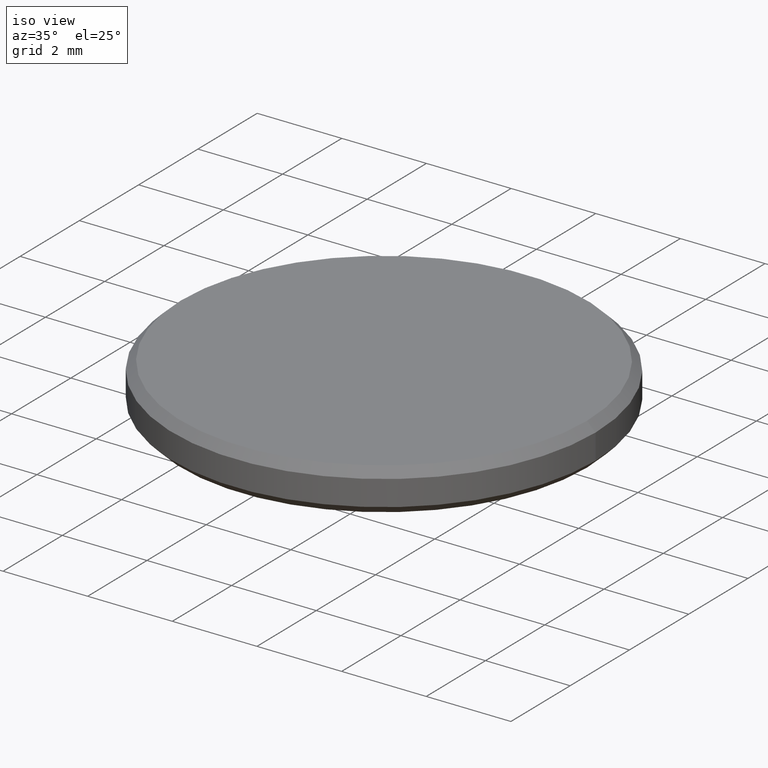
[diagram: clean part render]
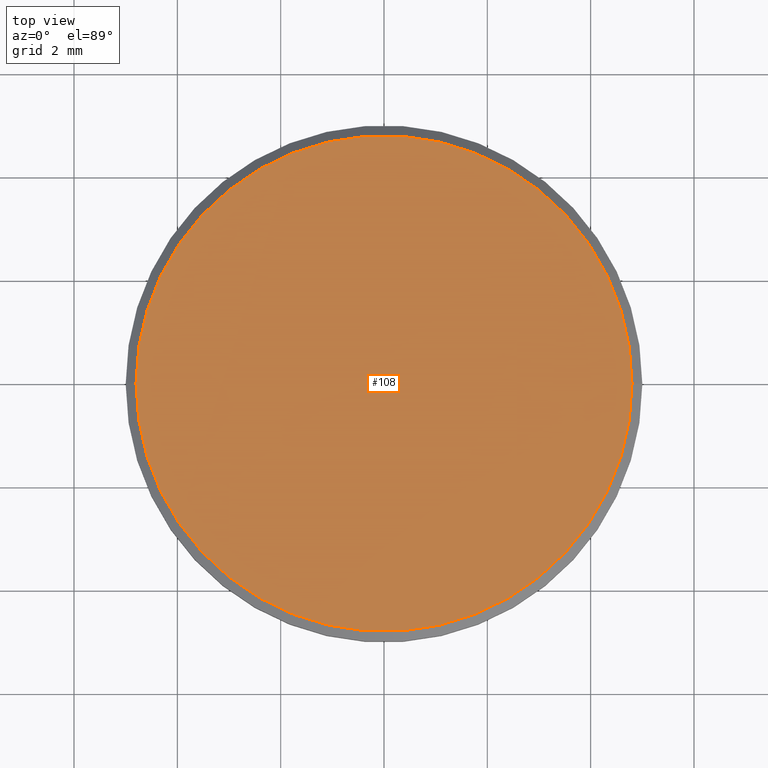
[diagram: tour spotlight — one face highlighted and labeled with its STEP entity id]
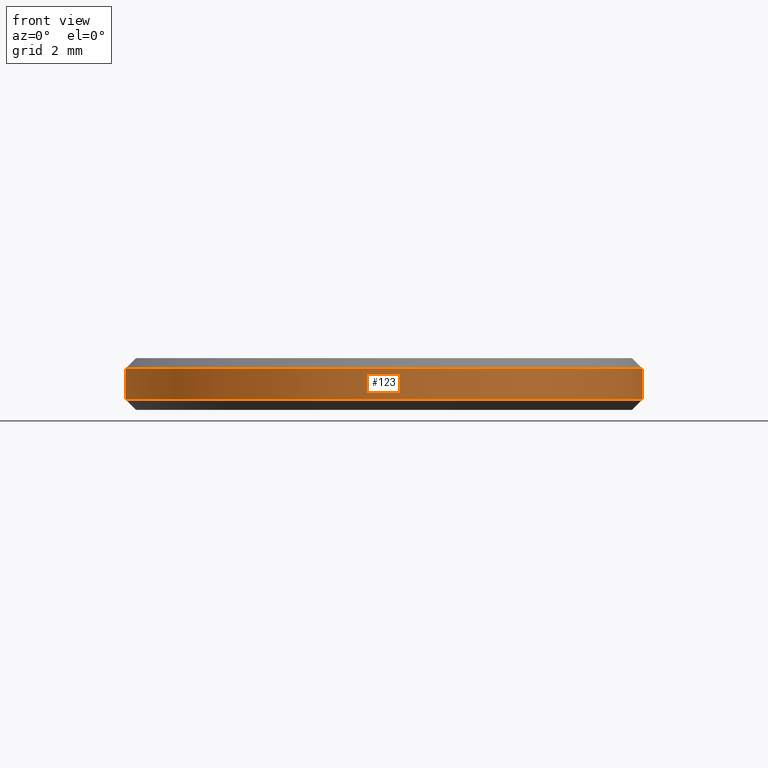
[diagram: tour spotlight — one face highlighted and labeled with its STEP entity id]
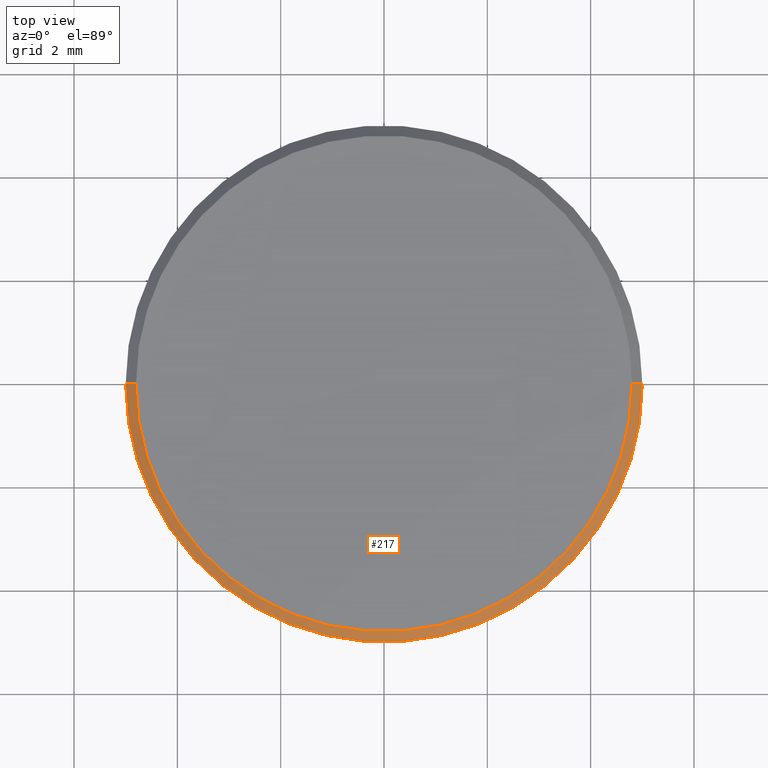
[diagram: tour spotlight — one face highlighted and labeled with its STEP entity id]
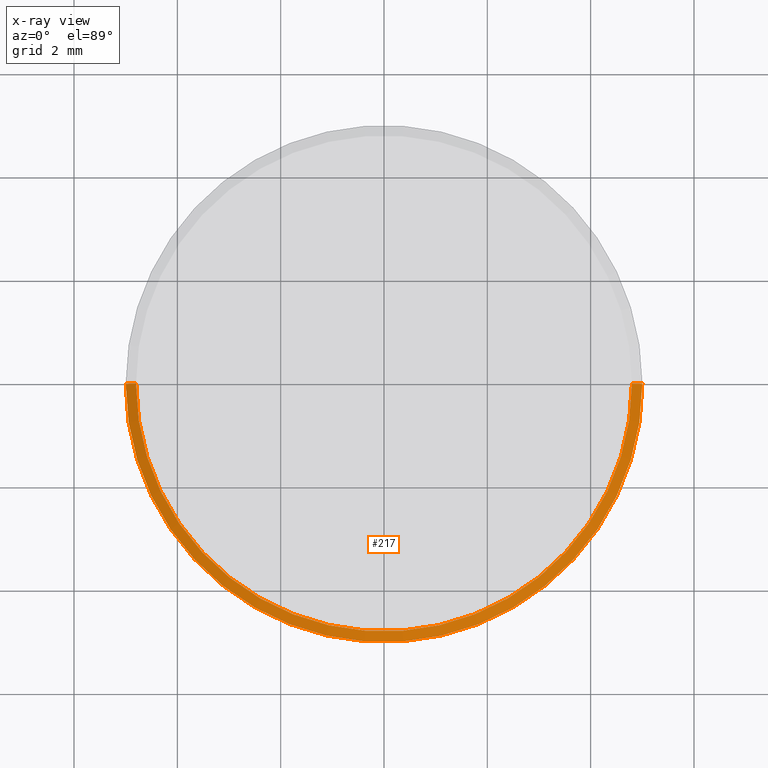
[diagram: x-ray of the same camera — body ghosted, this tour face saturated]
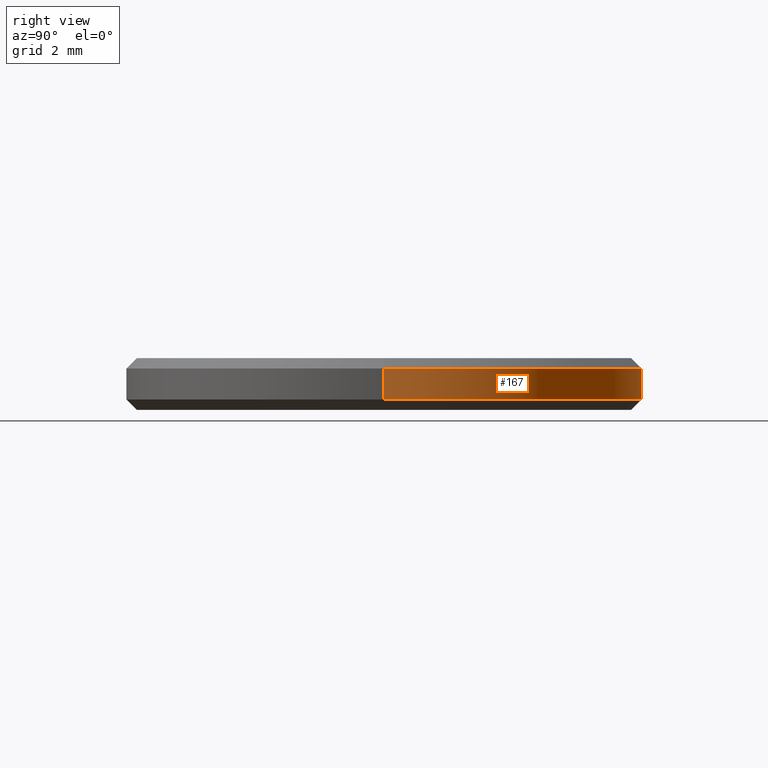
[diagram: tour spotlight — one face highlighted and labeled with its STEP entity id]
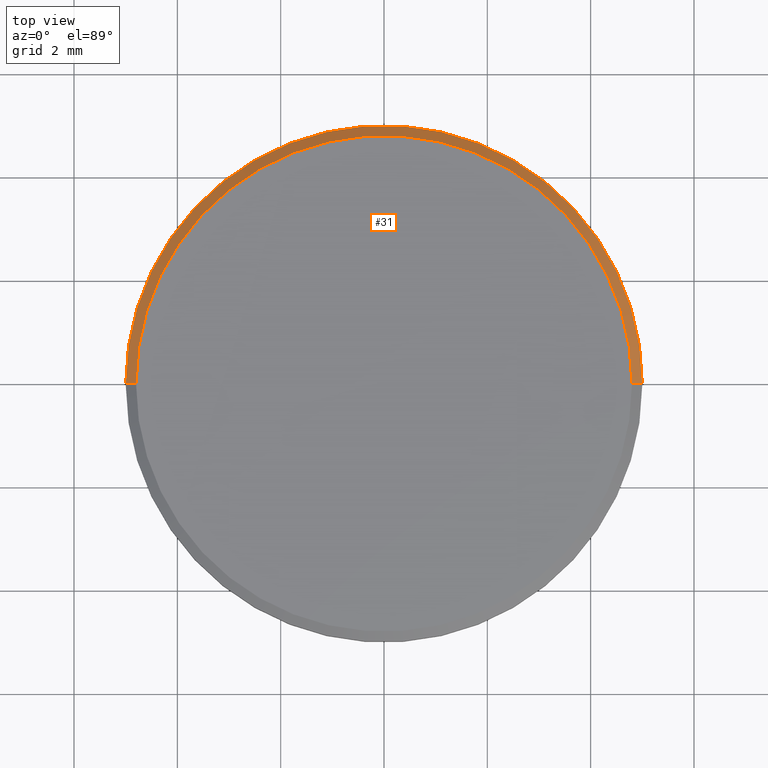
[diagram: tour spotlight — one face highlighted and labeled with its STEP entity id]
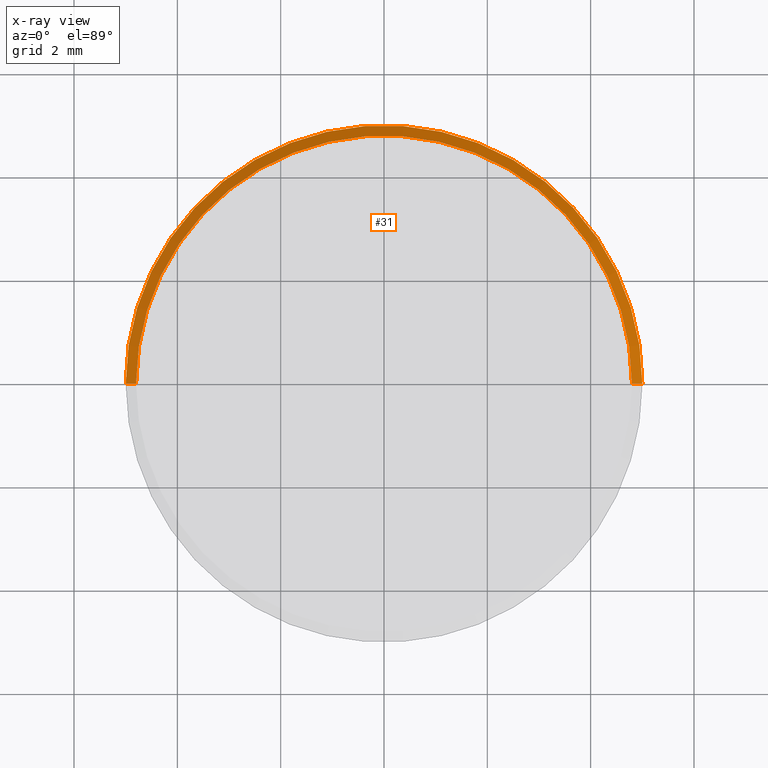
[diagram: x-ray of the same camera — body ghosted, this tour face saturated]
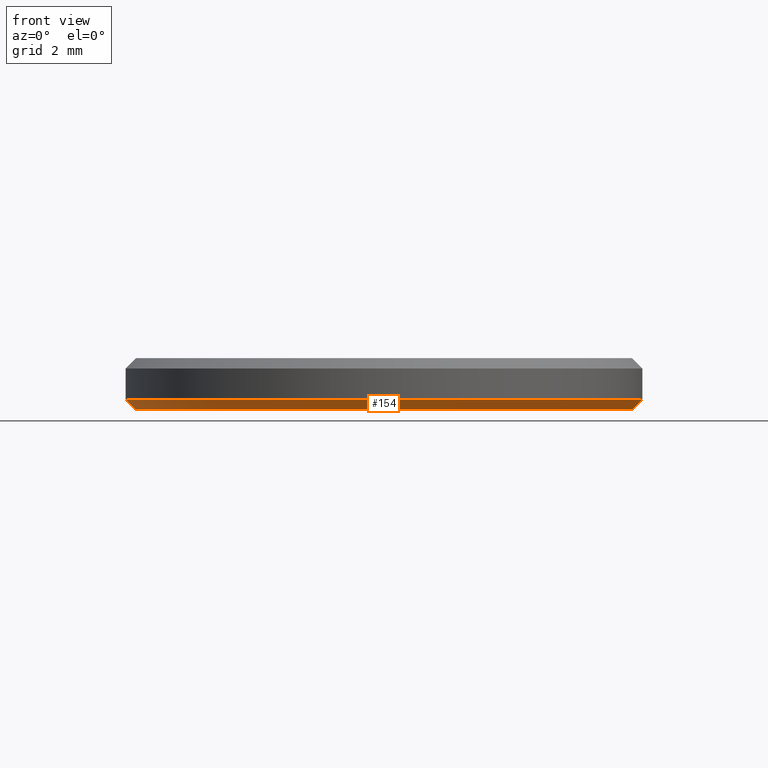
[diagram: tour spotlight — one face highlighted and labeled with its STEP entity id]
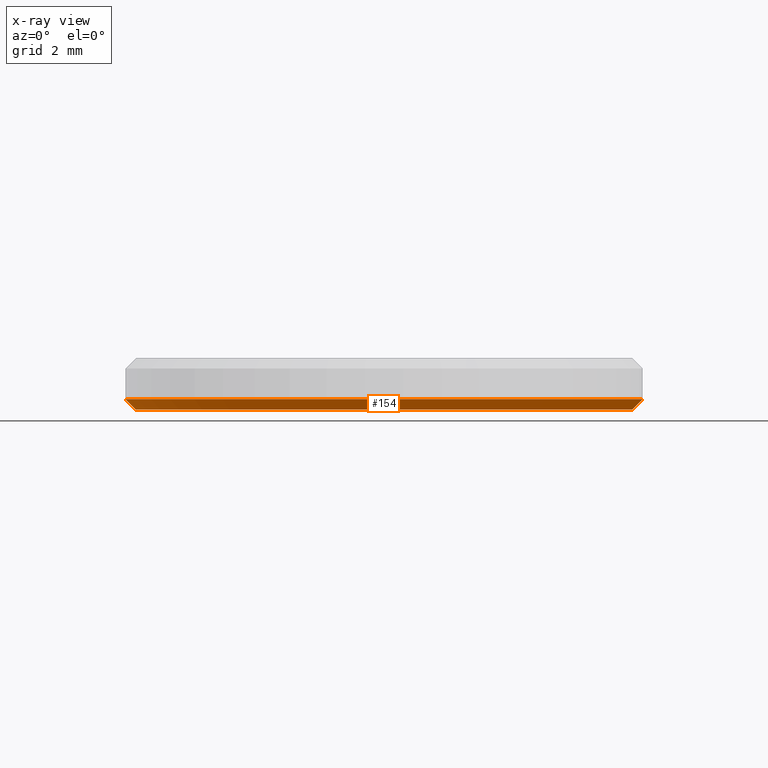
[diagram: x-ray of the same camera — body ghosted, this tour face saturated]
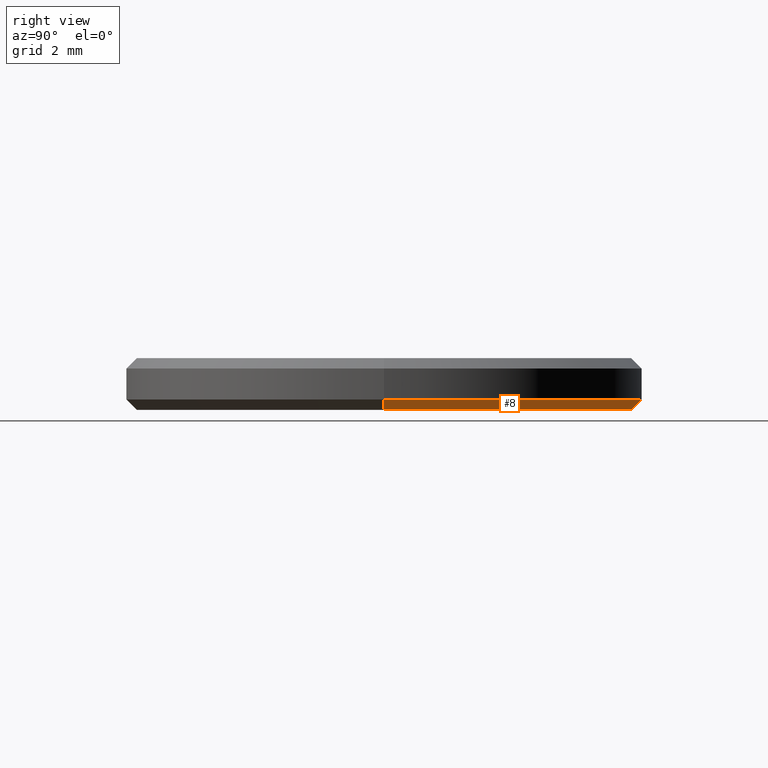
[diagram: tour spotlight — one face highlighted and labeled with its STEP entity id]
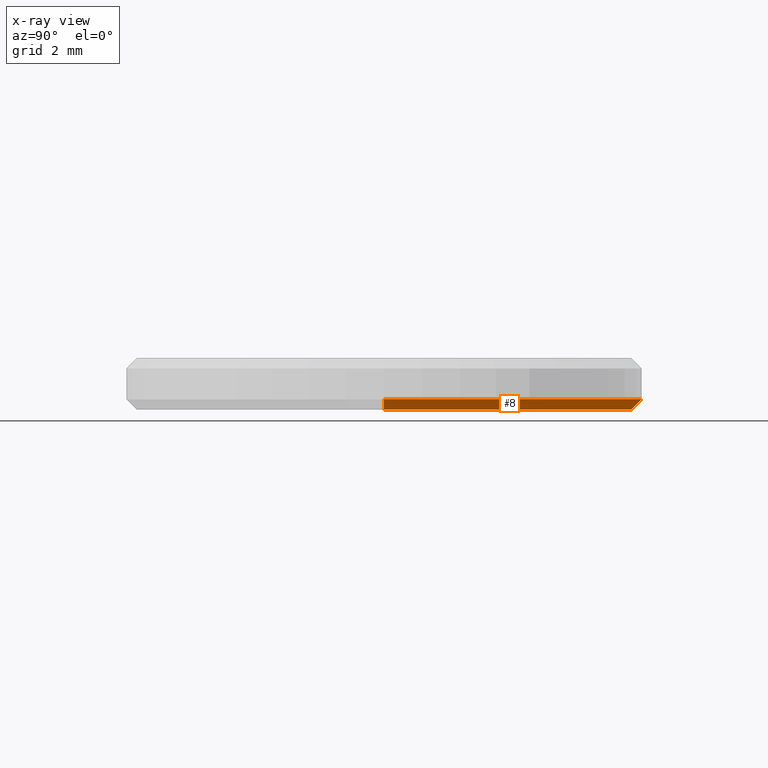
[diagram: x-ray of the same camera — body ghosted, this tour face saturated]
A machine part: a face-by-face anatomy tour. The part has 8 B-rep faces; the first image is the clean iso view, then the 7 largest visible faces are spotlighted one at a time (largest first), each with its STEP entity span.

Face 1 — top view, entity #108. In plain terms, the highlighted planar face has unit normal (0, 0, 1).
Definition (entity closure, byte-faithful):
#5 = AXIS2_PLACEMENT_3D ( 'NONE', #182, #65, #240 ) ;
#9 = DIRECTION ( 'NONE',  ( 0.000000000000000000, 0.000000000000000000, 1.000000000000000000 ) ) ;
#20 = ORIENTED_EDGE ( 'NONE', *, *, #81, .T. ) ;
#26 = CARTESIAN_POINT ( 'NONE',  ( 4.800000000000002487, 6.000769315822031726E-16, 1.000000000000000000 ) ) ;
#27 = CARTESIAN_POINT ( 'NONE',  ( 0.000000000000000000, 0.000000000000000000, 1.000000000000000000 ) ) ;
#42 = CIRCLE ( 'NONE', #5, 4.800000000000002487 ) ;
#48 = ORIENTED_EDGE ( 'NONE', *, *, #174, .T. ) ;
#58 = DIRECTION ( 'NONE',  ( 1.000000000000000000, 0.000000000000000000, -0.000000000000000000 ) ) ;
#65 = DIRECTION ( 'NONE',  ( 0.000000000000000000, 0.000000000000000000, 1.000000000000000000 ) ) ;
#66 = VERTEX_POINT ( 'NONE', #157 ) ;
#67 = AXIS2_PLACEMENT_3D ( 'NONE', #27, #178, #58 ) ;
#81 = EDGE_CURVE ( 'NONE', #92, #66, #207, .T. ) ;
#92 = VERTEX_POINT ( 'NONE', #26 ) ;
#101 = DIRECTION ( 'NONE',  ( 1.000000000000000000, 0.000000000000000000, 0.000000000000000000 ) ) ;
#108 = ADVANCED_FACE ( 'NONE', ( #194 ), #235, .T. ) ;
#157 = CARTESIAN_POINT ( 'NONE',  ( -4.800000000000002487, 0.000000000000000000, 1.000000000000000000 ) ) ;
#158 = CARTESIAN_POINT ( 'NONE',  ( 0.000000000000000000, 0.000000000000000000, 1.000000000000000000 ) ) ;
#174 = EDGE_CURVE ( 'NONE', #66, #92, #42, .T. ) ;
#178 = DIRECTION ( 'NONE',  ( 0.000000000000000000, 0.000000000000000000, 1.000000000000000000 ) ) ;
#182 = CARTESIAN_POINT ( 'NONE',  ( 0.000000000000000000, 0.000000000000000000, 1.000000000000000000 ) ) ;
#194 = FACE_OUTER_BOUND ( 'NONE', #226, .T. ) ;
#207 = CIRCLE ( 'NONE', #239, 4.800000000000002487 ) ;
#226 = EDGE_LOOP ( 'NONE', ( #48, #20 ) ) ;
#235 = PLANE ( 'NONE',  #67 ) ;
#239 = AXIS2_PLACEMENT_3D ( 'NONE', #158, #9, #101 ) ;
#240 = DIRECTION ( 'NONE',  ( 1.000000000000000000, 0.000000000000000000, 0.000000000000000000 ) ) ;

Face 2 — front view, entity #123. In plain terms, the highlighted cylindrical surface (partial cylindrical patch) has radius 5 mm, axis along (-0, -0, -1).
Definition (entity closure, byte-faithful):
#2 = EDGE_CURVE ( 'NONE', #171, #198, #144, .T. ) ;
#4 = EDGE_CURVE ( 'NONE', #198, #204, #38, .T. ) ;
#13 = LINE ( 'NONE', #84, #96 ) ;
#23 = DIRECTION ( 'NONE',  ( -0.000000000000000000, -0.000000000000000000, 1.000000000000000000 ) ) ;
#29 = DIRECTION ( 'NONE',  ( -0.000000000000000000, -0.000000000000000000, -1.000000000000000000 ) ) ;
#33 = ORIENTED_EDGE ( 'NONE', *, *, #90, .F. ) ;
#37 = ORIENTED_EDGE ( 'NONE', *, *, #230, .T. ) ;
#38 = LINE ( 'NONE', #137, #50 ) ;
#44 = FACE_OUTER_BOUND ( 'NONE', #201, .T. ) ;
#50 = VECTOR ( 'NONE', #208, 1000.000000000000000 ) ;
#56 = DIRECTION ( 'NONE',  ( 1.000000000000000000, 0.000000000000000000, 0.000000000000000000 ) ) ;
#60 = CARTESIAN_POINT ( 'NONE',  ( 0.000000000000000000, 0.000000000000000000, 1.000000000000000000 ) ) ;
#63 = CARTESIAN_POINT ( 'NONE',  ( 5.000000000000000000, 6.123233995736766282E-16, 0.1999999999999996503 ) ) ;
#73 = CARTESIAN_POINT ( 'NONE',  ( -5.000000000000000000, 0.000000000000000000, 0.1999999999999996503 ) ) ;
#75 = CIRCLE ( 'NONE', #114, 5.000000000000000000 ) ;
#84 = CARTESIAN_POINT ( 'NONE',  ( 5.000000000000000000, 6.123233995736766282E-16, 1.000000000000000000 ) ) ;
#90 = EDGE_CURVE ( 'NONE', #171, #142, #13, .T. ) ;
#96 = VECTOR ( 'NONE', #29, 1000.000000000000000 ) ;
#99 = DIRECTION ( 'NONE',  ( -1.000000000000000000, 0.000000000000000000, 0.000000000000000000 ) ) ;
#103 = CARTESIAN_POINT ( 'NONE',  ( 5.000000000000000000, 6.123233995736766282E-16, 0.8000000000000012657 ) ) ;
#104 = ORIENTED_EDGE ( 'NONE', *, *, #2, .T. ) ;
#114 = AXIS2_PLACEMENT_3D ( 'NONE', #224, #23, #117 ) ;
#117 = DIRECTION ( 'NONE',  ( 1.000000000000000000, 0.000000000000000000, 0.000000000000000000 ) ) ;
#123 = ADVANCED_FACE ( 'NONE', ( #44 ), #237, .T. ) ;
#130 = AXIS2_PLACEMENT_3D ( 'NONE', #175, #187, #56 ) ;
#137 = CARTESIAN_POINT ( 'NONE',  ( -5.000000000000000000, 0.000000000000000000, 1.000000000000000000 ) ) ;
#138 = CARTESIAN_POINT ( 'NONE',  ( -5.000000000000000000, 0.000000000000000000, 0.8000000000000012657 ) ) ;
#142 = VERTEX_POINT ( 'NONE', #63 ) ;
#144 = CIRCLE ( 'NONE', #130, 5.000000000000000000 ) ;
#171 = VERTEX_POINT ( 'NONE', #103 ) ;
#175 = CARTESIAN_POINT ( 'NONE',  ( 0.000000000000000000, 0.000000000000000000, 0.8000000000000012657 ) ) ;
#176 = AXIS2_PLACEMENT_3D ( 'NONE', #60, #216, #99 ) ;
#187 = DIRECTION ( 'NONE',  ( 0.000000000000000000, 0.000000000000000000, -1.000000000000000000 ) ) ;
#191 = ORIENTED_EDGE ( 'NONE', *, *, #4, .T. ) ;
#198 = VERTEX_POINT ( 'NONE', #138 ) ;
#201 = EDGE_LOOP ( 'NONE', ( #33, #104, #191, #37 ) ) ;
#204 = VERTEX_POINT ( 'NONE', #73 ) ;
#208 = DIRECTION ( 'NONE',  ( -0.000000000000000000, -0.000000000000000000, -1.000000000000000000 ) ) ;
#216 = DIRECTION ( 'NONE',  ( -0.000000000000000000, -0.000000000000000000, -1.000000000000000000 ) ) ;
#224 = CARTESIAN_POINT ( 'NONE',  ( 0.000000000000000000, 0.000000000000000000, 0.1999999999999996503 ) ) ;
#230 = EDGE_CURVE ( 'NONE', #204, #142, #75, .T. ) ;
#237 = CYLINDRICAL_SURFACE ( 'NONE', #176, 5.000000000000000000 ) ;

Face 3 — top view, entity #217. An x-ray twin of the same camera follows (body ghosted, this face saturated) — the face is partly hidden behind the body. In plain terms, the highlighted conical surface has half-angle 45 deg.
Definition (entity closure, byte-faithful):
#1 = EDGE_LOOP ( 'NONE', ( #219, #220, #105, #88 ) ) ;
#2 = EDGE_CURVE ( 'NONE', #171, #198, #144, .T. ) ;
#5 = AXIS2_PLACEMENT_3D ( 'NONE', #182, #65, #240 ) ;
#26 = CARTESIAN_POINT ( 'NONE',  ( 4.800000000000002487, 6.000769315822031726E-16, 1.000000000000000000 ) ) ;
#36 = AXIS2_PLACEMENT_3D ( 'NONE', #172, #222, #209 ) ;
#42 = CIRCLE ( 'NONE', #5, 4.800000000000002487 ) ;
#54 = EDGE_CURVE ( 'NONE', #66, #198, #212, .T. ) ;
#56 = DIRECTION ( 'NONE',  ( 1.000000000000000000, 0.000000000000000000, 0.000000000000000000 ) ) ;
#65 = DIRECTION ( 'NONE',  ( 0.000000000000000000, 0.000000000000000000, 1.000000000000000000 ) ) ;
#66 = VERTEX_POINT ( 'NONE', #157 ) ;
#88 = ORIENTED_EDGE ( 'NONE', *, *, #2, .F. ) ;
#92 = VERTEX_POINT ( 'NONE', #26 ) ;
#94 = FACE_OUTER_BOUND ( 'NONE', #1, .T. ) ;
#103 = CARTESIAN_POINT ( 'NONE',  ( 5.000000000000000000, 6.123233995736766282E-16, 0.8000000000000012657 ) ) ;
#105 = ORIENTED_EDGE ( 'NONE', *, *, #54, .T. ) ;
#130 = AXIS2_PLACEMENT_3D ( 'NONE', #175, #187, #56 ) ;
#136 = CARTESIAN_POINT ( 'NONE',  ( 4.800000000000002487, 5.878304635907297169E-16, 1.000000000000000000 ) ) ;
#138 = CARTESIAN_POINT ( 'NONE',  ( -5.000000000000000000, 0.000000000000000000, 0.8000000000000012657 ) ) ;
#143 = VECTOR ( 'NONE', #206, 1000.000000000000114 ) ;
#144 = CIRCLE ( 'NONE', #130, 5.000000000000000000 ) ;
#156 = CONICAL_SURFACE ( 'NONE', #36, 4.800000000000002487, 0.7853981633974461696 ) ;
#157 = CARTESIAN_POINT ( 'NONE',  ( -4.800000000000002487, 0.000000000000000000, 1.000000000000000000 ) ) ;
#170 = VECTOR ( 'NONE', #197, 1000.000000000000114 ) ;
#171 = VERTEX_POINT ( 'NONE', #103 ) ;
#172 = CARTESIAN_POINT ( 'NONE',  ( 0.000000000000000000, 0.000000000000000000, 1.000000000000000000 ) ) ;
#174 = EDGE_CURVE ( 'NONE', #66, #92, #42, .T. ) ;
#175 = CARTESIAN_POINT ( 'NONE',  ( 0.000000000000000000, 0.000000000000000000, 0.8000000000000012657 ) ) ;
#179 = CARTESIAN_POINT ( 'NONE',  ( -4.800000000000002487, 0.000000000000000000, 1.000000000000000000 ) ) ;
#182 = CARTESIAN_POINT ( 'NONE',  ( 0.000000000000000000, 0.000000000000000000, 1.000000000000000000 ) ) ;
#183 = EDGE_CURVE ( 'NONE', #92, #171, #192, .T. ) ;
#187 = DIRECTION ( 'NONE',  ( 0.000000000000000000, 0.000000000000000000, -1.000000000000000000 ) ) ;
#192 = LINE ( 'NONE', #136, #143 ) ;
#197 = DIRECTION ( 'NONE',  ( -0.7071067811865460184, 0.000000000000000000, -0.7071067811865489050 ) ) ;
#198 = VERTEX_POINT ( 'NONE', #138 ) ;
#206 = DIRECTION ( 'NONE',  ( 0.7071067811865460184, 8.659560562354913137E-17, -0.7071067811865489050 ) ) ;
#209 = DIRECTION ( 'NONE',  ( -1.000000000000000000, 0.000000000000000000, 0.000000000000000000 ) ) ;
#212 = LINE ( 'NONE', #179, #170 ) ;
#217 = ADVANCED_FACE ( 'NONE', ( #94 ), #156, .T. ) ;
#219 = ORIENTED_EDGE ( 'NONE', *, *, #183, .F. ) ;
#220 = ORIENTED_EDGE ( 'NONE', *, *, #174, .F. ) ;
#222 = DIRECTION ( 'NONE',  ( 0.000000000000000000, 0.000000000000000000, -1.000000000000000000 ) ) ;
#240 = DIRECTION ( 'NONE',  ( 1.000000000000000000, 0.000000000000000000, 0.000000000000000000 ) ) ;

Face 4 — right view, entity #167. In plain terms, the highlighted cylindrical surface (partial cylindrical patch) has radius 5 mm, axis along (-0, -0, -1).
Definition (entity closure, byte-faithful):
#4 = EDGE_CURVE ( 'NONE', #198, #204, #38, .T. ) ;
#13 = LINE ( 'NONE', #84, #96 ) ;
#14 = DIRECTION ( 'NONE',  ( -0.000000000000000000, -0.000000000000000000, -1.000000000000000000 ) ) ;
#21 = EDGE_CURVE ( 'NONE', #198, #171, #24, .T. ) ;
#22 = DIRECTION ( 'NONE',  ( 0.000000000000000000, 0.000000000000000000, -1.000000000000000000 ) ) ;
#24 = CIRCLE ( 'NONE', #89, 5.000000000000000000 ) ;
#29 = DIRECTION ( 'NONE',  ( -0.000000000000000000, -0.000000000000000000, -1.000000000000000000 ) ) ;
#38 = LINE ( 'NONE', #137, #50 ) ;
#45 = ORIENTED_EDGE ( 'NONE', *, *, #21, .T. ) ;
#50 = VECTOR ( 'NONE', #208, 1000.000000000000000 ) ;
#63 = CARTESIAN_POINT ( 'NONE',  ( 5.000000000000000000, 6.123233995736766282E-16, 0.1999999999999996503 ) ) ;
#70 = CARTESIAN_POINT ( 'NONE',  ( 0.000000000000000000, 0.000000000000000000, 0.8000000000000012657 ) ) ;
#73 = CARTESIAN_POINT ( 'NONE',  ( -5.000000000000000000, 0.000000000000000000, 0.1999999999999996503 ) ) ;
#84 = CARTESIAN_POINT ( 'NONE',  ( 5.000000000000000000, 6.123233995736766282E-16, 1.000000000000000000 ) ) ;
#89 = AXIS2_PLACEMENT_3D ( 'NONE', #70, #22, #135 ) ;
#90 = EDGE_CURVE ( 'NONE', #171, #142, #13, .T. ) ;
#96 = VECTOR ( 'NONE', #29, 1000.000000000000000 ) ;
#103 = CARTESIAN_POINT ( 'NONE',  ( 5.000000000000000000, 6.123233995736766282E-16, 0.8000000000000012657 ) ) ;
#110 = ORIENTED_EDGE ( 'NONE', *, *, #133, .T. ) ;
#125 = AXIS2_PLACEMENT_3D ( 'NONE', #140, #181, #162 ) ;
#129 = CYLINDRICAL_SURFACE ( 'NONE', #185, 5.000000000000000000 ) ;
#133 = EDGE_CURVE ( 'NONE', #142, #204, #195, .T. ) ;
#135 = DIRECTION ( 'NONE',  ( 1.000000000000000000, 0.000000000000000000, 0.000000000000000000 ) ) ;
#137 = CARTESIAN_POINT ( 'NONE',  ( -5.000000000000000000, 0.000000000000000000, 1.000000000000000000 ) ) ;
#138 = CARTESIAN_POINT ( 'NONE',  ( -5.000000000000000000, 0.000000000000000000, 0.8000000000000012657 ) ) ;
#139 = EDGE_LOOP ( 'NONE', ( #45, #148, #110, #215 ) ) ;
#140 = CARTESIAN_POINT ( 'NONE',  ( 0.000000000000000000, 0.000000000000000000, 0.1999999999999996503 ) ) ;
#142 = VERTEX_POINT ( 'NONE', #63 ) ;
#147 = DIRECTION ( 'NONE',  ( -1.000000000000000000, 0.000000000000000000, 0.000000000000000000 ) ) ;
#148 = ORIENTED_EDGE ( 'NONE', *, *, #90, .T. ) ;
#162 = DIRECTION ( 'NONE',  ( 1.000000000000000000, 0.000000000000000000, 0.000000000000000000 ) ) ;
#166 = FACE_OUTER_BOUND ( 'NONE', #139, .T. ) ;
#167 = ADVANCED_FACE ( 'NONE', ( #166 ), #129, .T. ) ;
#171 = VERTEX_POINT ( 'NONE', #103 ) ;
#181 = DIRECTION ( 'NONE',  ( -0.000000000000000000, -0.000000000000000000, 1.000000000000000000 ) ) ;
#185 = AXIS2_PLACEMENT_3D ( 'NONE', #200, #14, #147 ) ;
#195 = CIRCLE ( 'NONE', #125, 5.000000000000000000 ) ;
#198 = VERTEX_POINT ( 'NONE', #138 ) ;
#200 = CARTESIAN_POINT ( 'NONE',  ( 0.000000000000000000, 0.000000000000000000, 1.000000000000000000 ) ) ;
#204 = VERTEX_POINT ( 'NONE', #73 ) ;
#208 = DIRECTION ( 'NONE',  ( -0.000000000000000000, -0.000000000000000000, -1.000000000000000000 ) ) ;
#215 = ORIENTED_EDGE ( 'NONE', *, *, #4, .F. ) ;

Face 5 — top view, entity #31. An x-ray twin of the same camera follows (body ghosted, this face saturated) — the face is partly hidden behind the body. In plain terms, the highlighted conical surface has half-angle 45 deg.
Definition (entity closure, byte-faithful):
#6 = CARTESIAN_POINT ( 'NONE',  ( 0.000000000000000000, 0.000000000000000000, 1.000000000000000000 ) ) ;
#9 = DIRECTION ( 'NONE',  ( 0.000000000000000000, 0.000000000000000000, 1.000000000000000000 ) ) ;
#15 = EDGE_LOOP ( 'NONE', ( #151, #184, #61, #131 ) ) ;
#21 = EDGE_CURVE ( 'NONE', #198, #171, #24, .T. ) ;
#22 = DIRECTION ( 'NONE',  ( 0.000000000000000000, 0.000000000000000000, -1.000000000000000000 ) ) ;
#24 = CIRCLE ( 'NONE', #89, 5.000000000000000000 ) ;
#26 = CARTESIAN_POINT ( 'NONE',  ( 4.800000000000002487, 6.000769315822031726E-16, 1.000000000000000000 ) ) ;
#31 = ADVANCED_FACE ( 'NONE', ( #205 ), #79, .T. ) ;
#54 = EDGE_CURVE ( 'NONE', #66, #198, #212, .T. ) ;
#61 = ORIENTED_EDGE ( 'NONE', *, *, #21, .F. ) ;
#66 = VERTEX_POINT ( 'NONE', #157 ) ;
#70 = CARTESIAN_POINT ( 'NONE',  ( 0.000000000000000000, 0.000000000000000000, 0.8000000000000012657 ) ) ;
#76 = DIRECTION ( 'NONE',  ( 0.000000000000000000, 0.000000000000000000, -1.000000000000000000 ) ) ;
#79 = CONICAL_SURFACE ( 'NONE', #106, 4.800000000000002487, 0.7853981633974461696 ) ;
#81 = EDGE_CURVE ( 'NONE', #92, #66, #207, .T. ) ;
#89 = AXIS2_PLACEMENT_3D ( 'NONE', #70, #22, #135 ) ;
#92 = VERTEX_POINT ( 'NONE', #26 ) ;
#101 = DIRECTION ( 'NONE',  ( 1.000000000000000000, 0.000000000000000000, 0.000000000000000000 ) ) ;
#103 = CARTESIAN_POINT ( 'NONE',  ( 5.000000000000000000, 6.123233995736766282E-16, 0.8000000000000012657 ) ) ;
#106 = AXIS2_PLACEMENT_3D ( 'NONE', #6, #76, #152 ) ;
#131 = ORIENTED_EDGE ( 'NONE', *, *, #54, .F. ) ;
#135 = DIRECTION ( 'NONE',  ( 1.000000000000000000, 0.000000000000000000, 0.000000000000000000 ) ) ;
#136 = CARTESIAN_POINT ( 'NONE',  ( 4.800000000000002487, 5.878304635907297169E-16, 1.000000000000000000 ) ) ;
#138 = CARTESIAN_POINT ( 'NONE',  ( -5.000000000000000000, 0.000000000000000000, 0.8000000000000012657 ) ) ;
#143 = VECTOR ( 'NONE', #206, 1000.000000000000114 ) ;
#151 = ORIENTED_EDGE ( 'NONE', *, *, #81, .F. ) ;
#152 = DIRECTION ( 'NONE',  ( -1.000000000000000000, 0.000000000000000000, 0.000000000000000000 ) ) ;
#157 = CARTESIAN_POINT ( 'NONE',  ( -4.800000000000002487, 0.000000000000000000, 1.000000000000000000 ) ) ;
#158 = CARTESIAN_POINT ( 'NONE',  ( 0.000000000000000000, 0.000000000000000000, 1.000000000000000000 ) ) ;
#170 = VECTOR ( 'NONE', #197, 1000.000000000000114 ) ;
#171 = VERTEX_POINT ( 'NONE', #103 ) ;
#179 = CARTESIAN_POINT ( 'NONE',  ( -4.800000000000002487, 0.000000000000000000, 1.000000000000000000 ) ) ;
#183 = EDGE_CURVE ( 'NONE', #92, #171, #192, .T. ) ;
#184 = ORIENTED_EDGE ( 'NONE', *, *, #183, .T. ) ;
#192 = LINE ( 'NONE', #136, #143 ) ;
#197 = DIRECTION ( 'NONE',  ( -0.7071067811865460184, 0.000000000000000000, -0.7071067811865489050 ) ) ;
#198 = VERTEX_POINT ( 'NONE', #138 ) ;
#205 = FACE_OUTER_BOUND ( 'NONE', #15, .T. ) ;
#206 = DIRECTION ( 'NONE',  ( 0.7071067811865460184, 8.659560562354913137E-17, -0.7071067811865489050 ) ) ;
#207 = CIRCLE ( 'NONE', #239, 4.800000000000002487 ) ;
#212 = LINE ( 'NONE', #179, #170 ) ;
#239 = AXIS2_PLACEMENT_3D ( 'NONE', #158, #9, #101 ) ;

Face 6 — front view, entity #154. An x-ray twin of the same camera follows (body ghosted, this face saturated) — the face is partly hidden behind the body. In plain terms, the highlighted conical surface has half-angle 45 deg.
Definition (entity closure, byte-faithful):
#7 = DIRECTION ( 'NONE',  ( 0.7071067811865490160, 0.000000000000000000, 0.7071067811865459074 ) ) ;
#12 = DIRECTION ( 'NONE',  ( 1.000000000000000000, 0.000000000000000000, 0.000000000000000000 ) ) ;
#18 = VECTOR ( 'NONE', #46, 1000.000000000000000 ) ;
#23 = DIRECTION ( 'NONE',  ( -0.000000000000000000, -0.000000000000000000, 1.000000000000000000 ) ) ;
#30 = VERTEX_POINT ( 'NONE', #93 ) ;
#40 = CARTESIAN_POINT ( 'NONE',  ( 0.000000000000000000, 0.000000000000000000, 0.000000000000000000 ) ) ;
#46 = DIRECTION ( 'NONE',  ( -0.7071067811865490160, 8.659560562354950115E-17, 0.7071067811865459074 ) ) ;
#47 = CIRCLE ( 'NONE', #196, 4.799999999999999822 ) ;
#59 = DIRECTION ( 'NONE',  ( 1.000000000000000000, 0.000000000000000000, 0.000000000000000000 ) ) ;
#63 = CARTESIAN_POINT ( 'NONE',  ( 5.000000000000000000, 6.123233995736766282E-16, 0.1999999999999996503 ) ) ;
#73 = CARTESIAN_POINT ( 'NONE',  ( -5.000000000000000000, 0.000000000000000000, 0.1999999999999996503 ) ) ;
#75 = CIRCLE ( 'NONE', #114, 5.000000000000000000 ) ;
#80 = CARTESIAN_POINT ( 'NONE',  ( 0.000000000000000000, 0.000000000000000000, 0.1999999999999996503 ) ) ;
#82 = LINE ( 'NONE', #218, #18 ) ;
#85 = CARTESIAN_POINT ( 'NONE',  ( -4.799999999999999822, 6.000769315822029754E-16, 0.000000000000000000 ) ) ;
#87 = AXIS2_PLACEMENT_3D ( 'NONE', #80, #213, #12 ) ;
#93 = CARTESIAN_POINT ( 'NONE',  ( 4.799999999999999822, 0.000000000000000000, 0.000000000000000000 ) ) ;
#102 = EDGE_LOOP ( 'NONE', ( #160, #127, #146, #233 ) ) ;
#111 = EDGE_CURVE ( 'NONE', #30, #168, #47, .T. ) ;
#114 = AXIS2_PLACEMENT_3D ( 'NONE', #224, #23, #117 ) ;
#117 = DIRECTION ( 'NONE',  ( 1.000000000000000000, 0.000000000000000000, 0.000000000000000000 ) ) ;
#121 = DIRECTION ( 'NONE',  ( -0.000000000000000000, -0.000000000000000000, -1.000000000000000000 ) ) ;
#127 = ORIENTED_EDGE ( 'NONE', *, *, #111, .F. ) ;
#141 = FACE_OUTER_BOUND ( 'NONE', #102, .T. ) ;
#142 = VERTEX_POINT ( 'NONE', #63 ) ;
#146 = ORIENTED_EDGE ( 'NONE', *, *, #149, .T. ) ;
#149 = EDGE_CURVE ( 'NONE', #30, #142, #211, .T. ) ;
#150 = CONICAL_SURFACE ( 'NONE', #87, 5.000000000000000000, 0.7853981633974503884 ) ;
#154 = ADVANCED_FACE ( 'NONE', ( #141 ), #150, .T. ) ;
#155 = VECTOR ( 'NONE', #7, 1000.000000000000000 ) ;
#159 = EDGE_CURVE ( 'NONE', #168, #204, #82, .T. ) ;
#160 = ORIENTED_EDGE ( 'NONE', *, *, #159, .F. ) ;
#168 = VERTEX_POINT ( 'NONE', #85 ) ;
#193 = CARTESIAN_POINT ( 'NONE',  ( 5.000000000000000000, 0.000000000000000000, 0.1999999999999996503 ) ) ;
#196 = AXIS2_PLACEMENT_3D ( 'NONE', #40, #121, #59 ) ;
#204 = VERTEX_POINT ( 'NONE', #73 ) ;
#211 = LINE ( 'NONE', #193, #155 ) ;
#213 = DIRECTION ( 'NONE',  ( -0.000000000000000000, -0.000000000000000000, 1.000000000000000000 ) ) ;
#218 = CARTESIAN_POINT ( 'NONE',  ( -5.000000000000000000, 6.123233995736765296E-16, 0.1999999999999996503 ) ) ;
#224 = CARTESIAN_POINT ( 'NONE',  ( 0.000000000000000000, 0.000000000000000000, 0.1999999999999996503 ) ) ;
#230 = EDGE_CURVE ( 'NONE', #204, #142, #75, .T. ) ;
#233 = ORIENTED_EDGE ( 'NONE', *, *, #230, .F. ) ;

Face 7 — right view, entity #8. An x-ray twin of the same camera follows (body ghosted, this face saturated) — the face is partly hidden behind the body. In plain terms, the highlighted conical surface has half-angle 45 deg.
Definition (entity closure, byte-faithful):
#7 = DIRECTION ( 'NONE',  ( 0.7071067811865490160, 0.000000000000000000, 0.7071067811865459074 ) ) ;
#8 = ADVANCED_FACE ( 'NONE', ( #116 ), #74, .T. ) ;
#17 = ORIENTED_EDGE ( 'NONE', *, *, #159, .T. ) ;
#18 = VECTOR ( 'NONE', #46, 1000.000000000000000 ) ;
#28 = CARTESIAN_POINT ( 'NONE',  ( 0.000000000000000000, 0.000000000000000000, 0.000000000000000000 ) ) ;
#30 = VERTEX_POINT ( 'NONE', #93 ) ;
#32 = ORIENTED_EDGE ( 'NONE', *, *, #149, .F. ) ;
#43 = CIRCLE ( 'NONE', #227, 4.799999999999999822 ) ;
#46 = DIRECTION ( 'NONE',  ( -0.7071067811865490160, 8.659560562354950115E-17, 0.7071067811865459074 ) ) ;
#52 = DIRECTION ( 'NONE',  ( 1.000000000000000000, 0.000000000000000000, 0.000000000000000000 ) ) ;
#63 = CARTESIAN_POINT ( 'NONE',  ( 5.000000000000000000, 6.123233995736766282E-16, 0.1999999999999996503 ) ) ;
#71 = EDGE_CURVE ( 'NONE', #168, #30, #43, .T. ) ;
#73 = CARTESIAN_POINT ( 'NONE',  ( -5.000000000000000000, 0.000000000000000000, 0.1999999999999996503 ) ) ;
#74 = CONICAL_SURFACE ( 'NONE', #124, 5.000000000000000000, 0.7853981633974503884 ) ;
#82 = LINE ( 'NONE', #218, #18 ) ;
#85 = CARTESIAN_POINT ( 'NONE',  ( -4.799999999999999822, 6.000769315822029754E-16, 0.000000000000000000 ) ) ;
#93 = CARTESIAN_POINT ( 'NONE',  ( 4.799999999999999822, 0.000000000000000000, 0.000000000000000000 ) ) ;
#112 = ORIENTED_EDGE ( 'NONE', *, *, #71, .F. ) ;
#116 = FACE_OUTER_BOUND ( 'NONE', #238, .T. ) ;
#124 = AXIS2_PLACEMENT_3D ( 'NONE', #186, #189, #52 ) ;
#125 = AXIS2_PLACEMENT_3D ( 'NONE', #140, #181, #162 ) ;
#133 = EDGE_CURVE ( 'NONE', #142, #204, #195, .T. ) ;
#140 = CARTESIAN_POINT ( 'NONE',  ( 0.000000000000000000, 0.000000000000000000, 0.1999999999999996503 ) ) ;
#142 = VERTEX_POINT ( 'NONE', #63 ) ;
#149 = EDGE_CURVE ( 'NONE', #30, #142, #211, .T. ) ;
#155 = VECTOR ( 'NONE', #7, 1000.000000000000000 ) ;
#159 = EDGE_CURVE ( 'NONE', #168, #204, #82, .T. ) ;
#162 = DIRECTION ( 'NONE',  ( 1.000000000000000000, 0.000000000000000000, 0.000000000000000000 ) ) ;
#168 = VERTEX_POINT ( 'NONE', #85 ) ;
#181 = DIRECTION ( 'NONE',  ( -0.000000000000000000, -0.000000000000000000, 1.000000000000000000 ) ) ;
#186 = CARTESIAN_POINT ( 'NONE',  ( 0.000000000000000000, 0.000000000000000000, 0.1999999999999996503 ) ) ;
#189 = DIRECTION ( 'NONE',  ( -0.000000000000000000, -0.000000000000000000, 1.000000000000000000 ) ) ;
#193 = CARTESIAN_POINT ( 'NONE',  ( 5.000000000000000000, 0.000000000000000000, 0.1999999999999996503 ) ) ;
#195 = CIRCLE ( 'NONE', #125, 5.000000000000000000 ) ;
#203 = ORIENTED_EDGE ( 'NONE', *, *, #133, .F. ) ;
#204 = VERTEX_POINT ( 'NONE', #73 ) ;
#211 = LINE ( 'NONE', #193, #155 ) ;
#214 = DIRECTION ( 'NONE',  ( 1.000000000000000000, 0.000000000000000000, 0.000000000000000000 ) ) ;
#218 = CARTESIAN_POINT ( 'NONE',  ( -5.000000000000000000, 6.123233995736765296E-16, 0.1999999999999996503 ) ) ;
#227 = AXIS2_PLACEMENT_3D ( 'NONE', #28, #232, #214 ) ;
#232 = DIRECTION ( 'NONE',  ( -0.000000000000000000, -0.000000000000000000, -1.000000000000000000 ) ) ;
#238 = EDGE_LOOP ( 'NONE', ( #112, #17, #203, #32 ) ) ;